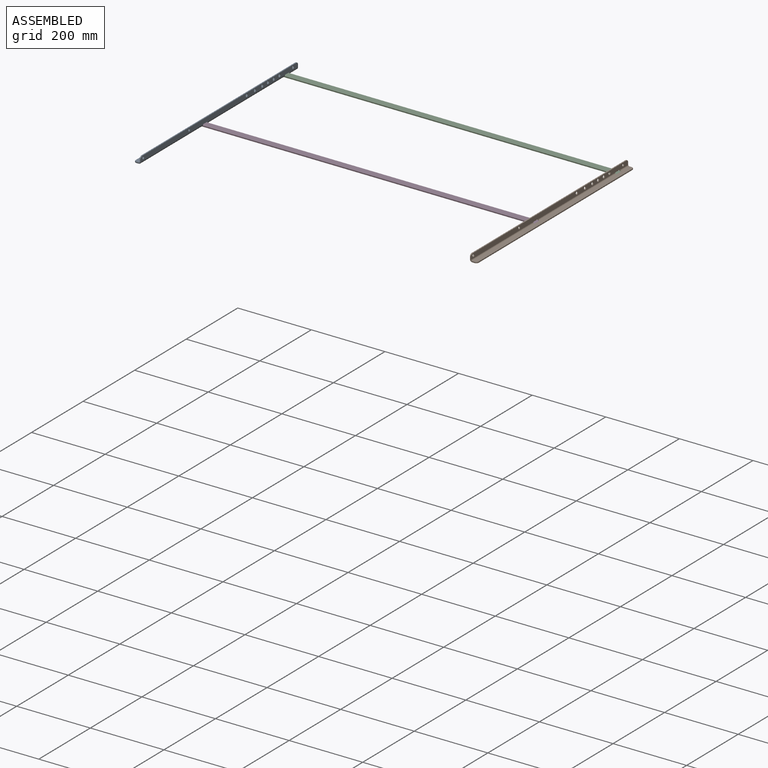
[diagram: assembled view]
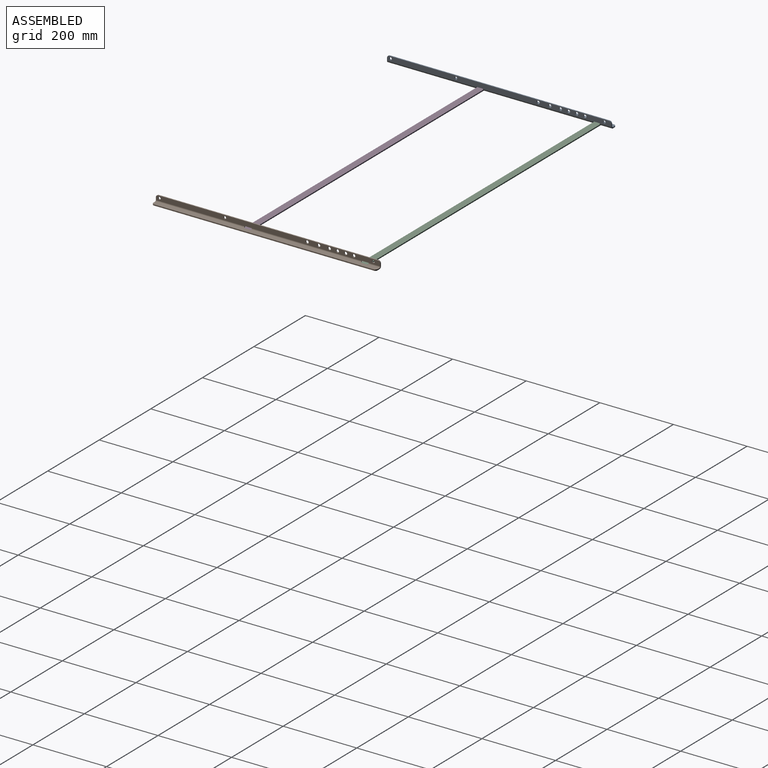
[diagram: assembled view, second angle]
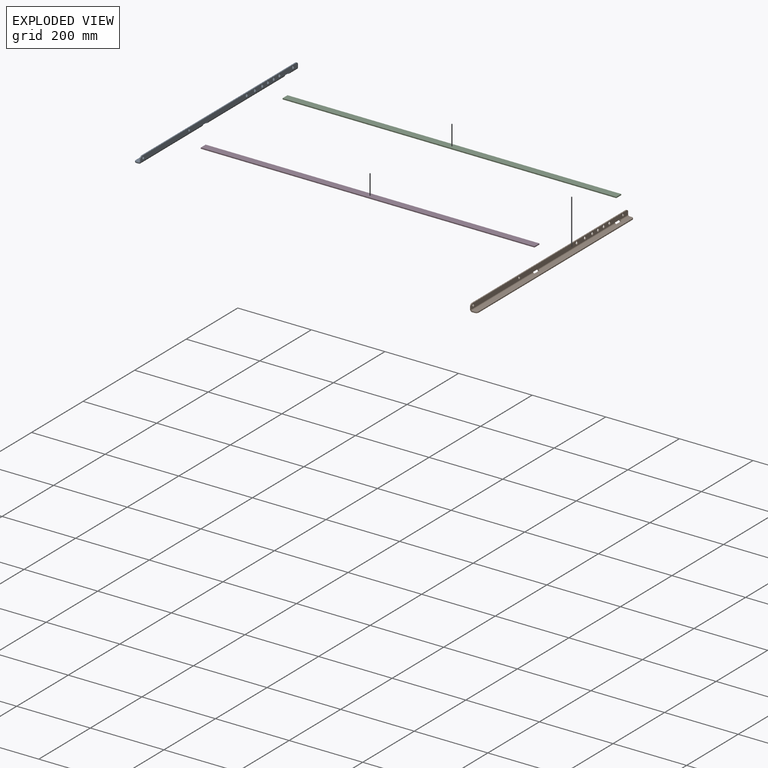
[diagram: exploded view]
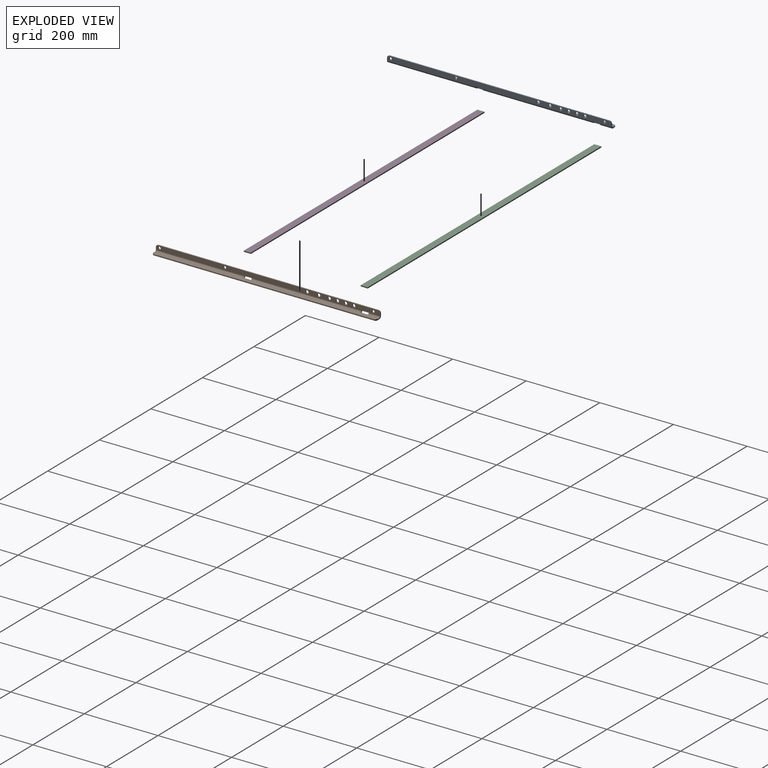
[diagram: exploded view, second angle]
ASSEMBLY  parts=4 mates=3
PART A: 35 faces, bbox 19.1x609.6x19.1 mm
  f0: plane 596.9x3.05mm, normal (0,0,1), area 1819.4mm2, adj f3,f4,f26,f34
  f1: plane 12.7x12.7mm, normal (0,-1,0), area 62.1mm2, adj f4,f22,f23,f26,f27,f29,f31,f34
  f2: plane 12.7x12.7mm, normal (0,1,0), area 62.1mm2, adj f3,f20,f22,f23,f24,f26,f30,f34
  f3: cylinder r=6.35mm len=6.35mm, axis (-1,0,0), area 30.4mm2, adj f0,f2,f26,f34
  f4: cylinder r=6.35mm len=6.35mm, axis (1,0,0), area 30.4mm2, adj f0,f1,f26,f34
  f5: cylinder r=3.49mm len=6.99mm, axis (1,0,0), area 66.9mm2, adj f26,f34
  f6: cylinder r=3.49mm len=6.99mm, axis (1,0,0), area 66.9mm2, adj f26,f34
  f7: cylinder r=3.49mm len=6.99mm, axis (1,0,0), area 66.9mm2, adj f26,f34
  f8: plane 6.35x6.35mm, normal (0,-1,0), area 23.4mm2, adj f10,f21,f22,f23,f25,f26,f32,f34
  f9: plane 6.35x6.35mm, normal (0,1,0), area 23.4mm2, adj f10,f22,f23,f26,f27,f29,f32,f34
  f10: plane 19.3x3.05mm, normal (0,0,-1), area 58.8mm2, adj f8,f9,f26,f34
  f11: plane 6.35x6.35mm, normal (0,-1,0), area 23.4mm2, adj f13,f20,f22,f23,f24,f26,f33,f34
  f12: plane 6.35x6.35mm, normal (0,1,0), area 23.4mm2, adj f13,f21,f22,f23,f25,f26,f33,f34
  f13: plane 19.3x3.05mm, normal (0,0,-1), area 58.8mm2, adj f11,f12,f26,f34
  f14: cylinder r=4.06mm len=8.13mm, axis (1,0,0), area 77.8mm2, adj f26,f34
  f15: cylinder r=4.06mm len=8.13mm, axis (1,0,0), area 77.8mm2, adj f26,f34
  f16: cylinder r=4.06mm len=8.13mm, axis (1,0,0), area 77.8mm2, adj f26,f34
  f17: cylinder r=4.06mm len=8.13mm, axis (1,0,0), area 77.8mm2, adj f26,f34
  f18: cylinder r=4.06mm len=8.13mm, axis (1,0,0), area 77.8mm2, adj f26,f34
  f19: cylinder r=4.06mm len=8.13mm, axis (1,0,0), area 77.8mm2, adj f26,f34
  f20: cylinder r=3.05mm len=31.5mm, axis (0,1,0), area 150.8mm2, adj f2,f11,f22,f26
  f21: cylinder r=3.05mm len=298.2mm, axis (0,1,0), area 1427.7mm2, adj f8,f12,f22,f26
  f22: plane 609.6x12.95mm, normal (0,0,1), area 7869.6mm2, adj f1,f2,f8,f9,f11,f12,f20,f21
  f23: plane 609.6x12.95mm, normal (0,0,-1), area 7869.6mm2, adj f1,f2,f8,f9,f11,f12,f24,f25
  f24: cylinder r=6.1mm len=31.5mm, axis (0,1,0), area 301.6mm2, adj f2,f11,f23,f34
  f25: cylinder r=6.1mm len=298.2mm, axis (0,1,0), area 2855.4mm2, adj f8,f12,f23,f34
  f26: plane 609.6x12.95mm, normal (-1,0,0), area 7443.4mm2, adj f0,f1,f2,f3,f4,f5,f6,f7
  f27: cylinder r=3.05mm len=241.3mm, axis (0,1,0), area 1155.3mm2, adj f1,f9,f22,f26
  f28: plane 596.9x3.05mm, normal (-1,0,0), area 1819.4mm2, adj f22,f23,f30,f31
  f29: cylinder r=6.1mm len=241.3mm, axis (0,1,0), area 2310.6mm2, adj f1,f9,f23,f34
  f30: cylinder r=6.35mm len=6.35mm, axis (0,0,-1), area 30.4mm2, adj f2,f22,f23,f28
  f31: cylinder r=6.35mm len=6.35mm, axis (0,0,1), area 30.4mm2, adj f1,f22,f23,f28
  f32: plane 19.3x3.05mm, normal (1,0,0), area 58.8mm2, adj f8,f9,f22,f23
  f33: plane 19.3x3.05mm, normal (1,0,0), area 58.8mm2, adj f11,f12,f22,f23
  f34: plane 609.6x12.95mm, normal (1,0,0), area 7443.4mm2, adj f0,f1,f2,f3,f4,f5,f6,f7
PART B: 35 faces, bbox 19.1x609.6x19.1 mm
  f0: plane 596.9x3.05mm, normal (1,0,0), area 1819.4mm2, adj f1,f2,f7,f9
  f1: cylinder r=6.35mm len=6.35mm, axis (0,0,1), area 30.4mm2, adj f0,f7,f9,f22
  f2: cylinder r=6.35mm len=6.35mm, axis (0,0,-1), area 30.4mm2, adj f0,f7,f9,f21
  f3: plane 19.3x3.05mm, normal (-1,0,0), area 58.8mm2, adj f7,f9,f14,f20
  f4: cylinder r=3.05mm len=241.3mm, axis (0,1,0), area 1155.3mm2, adj f7,f14,f22,f32
  f5: cylinder r=3.05mm len=31.5mm, axis (0,1,0), area 150.8mm2, adj f7,f19,f21,f32
  f6: plane 19.3x3.05mm, normal (-1,0,0), area 58.8mm2, adj f7,f9,f17,f19
  f7: plane 609.6x12.95mm, normal (0,0,1), area 7869.6mm2, adj f0,f1,f2,f3,f4,f5,f6,f8
  f8: cylinder r=3.05mm len=298.2mm, axis (0,1,0), area 1427.7mm2, adj f7,f17,f20,f32
  f9: plane 609.6x12.95mm, normal (0,0,-1), area 7869.6mm2, adj f0,f1,f2,f3,f6,f13,f14,f16
  f10: cylinder r=6.35mm len=6.35mm, axis (1,0,0), area 30.4mm2, adj f22,f23,f32,f34
  f11: cylinder r=6.35mm len=6.35mm, axis (-1,0,0), area 30.4mm2, adj f21,f23,f32,f34
  f12: plane 19.3x3.05mm, normal (0,0,-1), area 58.8mm2, adj f14,f20,f32,f34
  f13: cylinder r=6.1mm len=241.3mm, axis (0,1,0), area 2310.6mm2, adj f9,f14,f22,f34
  f14: plane 6.35x6.35mm, normal (0,1,0), area 23.4mm2, adj f3,f4,f7,f9,f12,f13,f32,f34
  f15: plane 19.3x3.05mm, normal (0,0,-1), area 58.8mm2, adj f17,f19,f32,f34
  f16: cylinder r=6.1mm len=298.2mm, axis (0,1,0), area 2855.4mm2, adj f9,f17,f20,f34
  f17: plane 6.35x6.35mm, normal (0,1,0), area 23.4mm2, adj f6,f7,f8,f9,f15,f16,f32,f34
  f18: cylinder r=6.1mm len=31.5mm, axis (0,1,0), area 301.6mm2, adj f9,f19,f21,f34
  f19: plane 6.35x6.35mm, normal (0,-1,0), area 23.4mm2, adj f5,f6,f7,f9,f15,f18,f32,f34
  f20: plane 6.35x6.35mm, normal (0,-1,0), area 23.4mm2, adj f3,f7,f8,f9,f12,f16,f32,f34
  f21: plane 12.7x12.7mm, normal (0,1,0), area 62.1mm2, adj f2,f5,f7,f9,f11,f18,f32,f34
  f22: plane 12.7x12.7mm, normal (0,-1,0), area 62.1mm2, adj f1,f4,f7,f9,f10,f13,f32,f34
  f23: plane 596.9x3.05mm, normal (0,0,1), area 1819.4mm2, adj f10,f11,f32,f34
  f24: cylinder r=3.49mm len=6.99mm, axis (1,0,0), area 66.9mm2, adj f32,f34
  f25: cylinder r=3.49mm len=6.99mm, axis (1,0,0), area 66.9mm2, adj f32,f34
  f26: cylinder r=3.49mm len=6.99mm, axis (1,0,0), area 66.9mm2, adj f32,f34
  f27: cylinder r=4.06mm len=8.13mm, axis (1,0,0), area 77.8mm2, adj f32,f34
  f28: cylinder r=4.06mm len=8.13mm, axis (1,0,0), area 77.8mm2, adj f32,f34
  f29: cylinder r=4.06mm len=8.13mm, axis (1,0,0), area 77.8mm2, adj f32,f34
  f30: cylinder r=4.06mm len=8.13mm, axis (1,0,0), area 77.8mm2, adj f32,f34
  f31: cylinder r=4.06mm len=8.13mm, axis (1,0,0), area 77.8mm2, adj f32,f34
  f32: plane 609.6x12.95mm, normal (1,0,0), area 7443.4mm2, adj f4,f5,f8,f10,f11,f12,f14,f15
  f33: cylinder r=4.06mm len=8.13mm, axis (1,0,0), area 77.8mm2, adj f32,f34
  f34: plane 609.6x12.95mm, normal (-1,0,0), area 7443.4mm2, adj f10,f11,f12,f13,f14,f15,f16,f17
PART C: 6 faces, bbox 906.6x19.1x3 mm
  f0: plane 906.63x3.05mm, normal (0,-1,0), area 2763.4mm2, adj f1,f3,f4,f5
  f1: plane 906.63x19.05mm, normal (0,0,-1), area 17271.3mm2, adj f0,f2,f4,f5
  f2: plane 906.63x3.05mm, normal (0,1,0), area 2763.4mm2, adj f1,f3,f4,f5
  f3: plane 906.63x19.05mm, normal (0,0,1), area 17271.3mm2, adj f0,f2,f4,f5
  f4: plane 19.05x3.05mm, normal (1,0,0), area 58.1mm2, adj f0,f1,f2,f3
  f5: plane 19.05x3.05mm, normal (-1,0,0), area 58.1mm2, adj f0,f1,f2,f3
PART D: same geometry as C
PLACE A t=(-446.96,358.78,0)mm
PLACE B t=(446.96,358.78,0)mm
PLACE C t=(0,317.5,0)mm
PLACE D at identity fixed
MATE fastened C.f3 <-> A.f22  axis (0,0,1) through (-453.31,307.98,3.05)mm
MATE fastened B.f7 <-> D.f3  axis (0,0,1) through (453.31,-9.53,3.05)mm
MATE fastened D.f3 <-> A.f22  axis (0,0,1) through (-453.31,-9.52,3.05)mm
